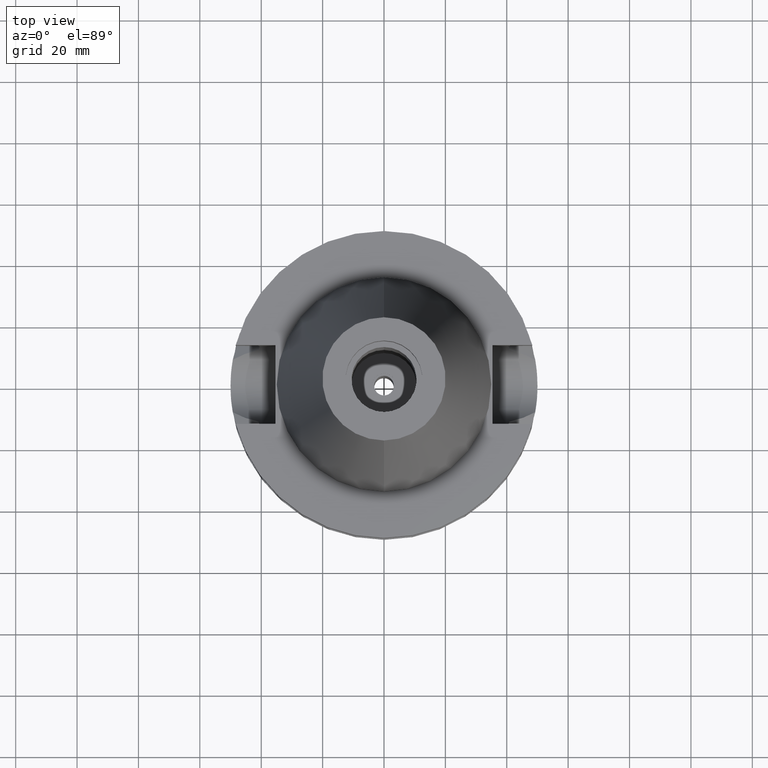
[diagram: clean part render]
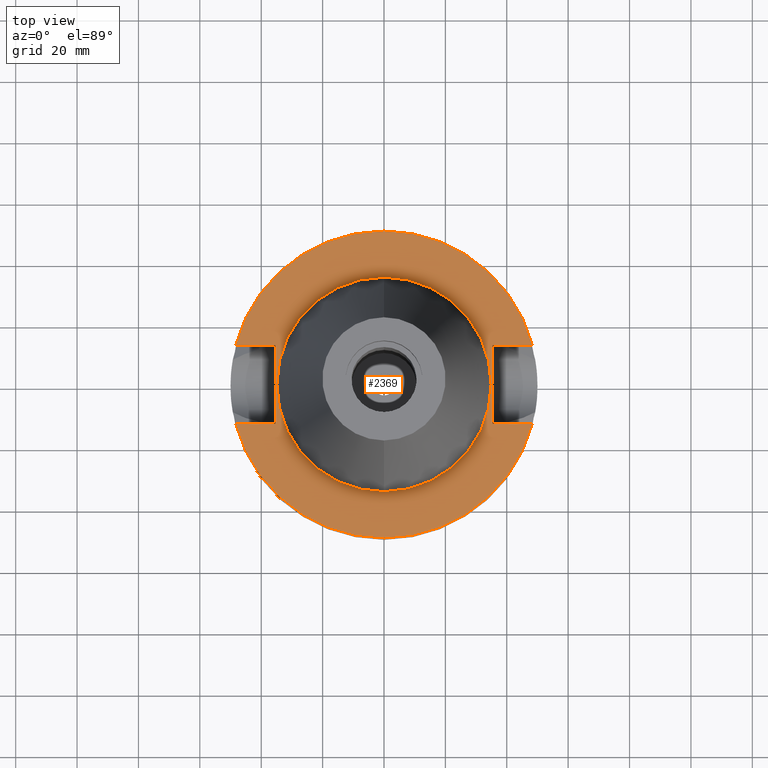
[diagram: same view with one face highlighted and labeled with its STEP entity id]
A machine part, top view. The second image highlights one B-rep face of the part: STEP entity #2369.
In plain terms, the highlighted planar face has unit normal (0, 0, -1).
Its self-contained STEP definition (entity closure, byte-faithful):
#40 = VERTEX_POINT ( 'NONE', #3235 ) ;
#49 = LINE ( 'NONE', #1803, #2599 ) ;
#65 = VERTEX_POINT ( 'NONE', #936 ) ;
#96 = VERTEX_POINT ( 'NONE', #139 ) ;
#98 = CIRCLE ( 'NONE', #1466, 50.00000000000000000 ) ;
#139 = CARTESIAN_POINT ( 'NONE',  ( 35.39999999999999858, 12.84999999999999964, -3.000000000000000000 ) ) ;
#266 = VERTEX_POINT ( 'NONE', #737 ) ;
#323 = VERTEX_POINT ( 'NONE', #802 ) ;
#362 = CARTESIAN_POINT ( 'NONE',  ( 0.0000000000000000000, 2.585719251719999535E-14, -3.000000000000000000 ) ) ;
#398 = DIRECTION ( 'NONE',  ( -1.000000000000000000, 0.0000000000000000000, 0.0000000000000000000 ) ) ;
#415 = DIRECTION ( 'NONE',  ( 0.0000000000000000000, 0.0000000000000000000, 1.000000000000000000 ) ) ;
#737 = CARTESIAN_POINT ( 'NONE',  ( -48.32057015392000210, -12.84999999999999964, -3.000000000000000000 ) ) ;
#739 = CARTESIAN_POINT ( 'NONE',  ( -35.39999999999999858, 12.84999999999999964, -3.000000000000000000 ) ) ;
#744 = LINE ( 'NONE', #1818, #2440 ) ;
#781 = EDGE_CURVE ( 'NONE', #323, #266, #744, .T. ) ;
#802 = CARTESIAN_POINT ( 'NONE',  ( -35.39999999999999858, -12.84999999999999964, -3.000000000000000000 ) ) ;
#812 = CARTESIAN_POINT ( 'NONE',  ( 48.32057015392000210, -12.84999999999999964, -3.000000000000000000 ) ) ;
#829 = CIRCLE ( 'NONE', #893, 34.92499999999999716 ) ;
#893 = AXIS2_PLACEMENT_3D ( 'NONE', #2720, #2112, #1838 ) ;
#936 = CARTESIAN_POINT ( 'NONE',  ( 35.39999999999999858, -12.84999999999999964, -3.000000000000000000 ) ) ;
#980 = VERTEX_POINT ( 'NONE', #2838 ) ;
#987 = ORIENTED_EDGE ( 'NONE', *, *, #3494, .F. ) ;
#989 = CARTESIAN_POINT ( 'NONE',  ( 0.0000000000000000000, 2.585719251719999535E-14, -3.000000000000000000 ) ) ;
#1042 = DIRECTION ( 'NONE',  ( -1.000000000000000000, 0.0000000000000000000, 0.0000000000000000000 ) ) ;
#1069 = VECTOR ( 'NONE', #3453, 1000.000000000000000 ) ;
#1077 = DIRECTION ( 'NONE',  ( 0.0000000000000000000, -1.000000000000000000, 0.0000000000000000000 ) ) ;
#1087 = EDGE_CURVE ( 'NONE', #65, #3446, #3157, .T. ) ;
#1104 = CIRCLE ( 'NONE', #3191, 50.00000000000000000 ) ;
#1131 = CARTESIAN_POINT ( 'NONE',  ( 0.0000000000000000000, 34.92499999999999716, -3.000000000000000000 ) ) ;
#1152 = EDGE_LOOP ( 'NONE', ( #3499, #2020 ) ) ;
#1161 = DIRECTION ( 'NONE',  ( 0.0000000000000000000, 0.0000000000000000000, -1.000000000000000000 ) ) ;
#1192 = VERTEX_POINT ( 'NONE', #1131 ) ;
#1221 = DIRECTION ( 'NONE',  ( 0.0000000000000000000, 1.000000000000000000, 0.0000000000000000000 ) ) ;
#1225 = EDGE_LOOP ( 'NONE', ( #1406, #1774, #1991, #3529, #1485, #987, #2372, #2929 ) ) ;
#1228 = EDGE_CURVE ( 'NONE', #96, #65, #1354, .T. ) ;
#1279 = VERTEX_POINT ( 'NONE', #1972 ) ;
#1336 = DIRECTION ( 'NONE',  ( 0.0000000000000000000, 0.0000000000000000000, -1.000000000000000000 ) ) ;
#1354 = LINE ( 'NONE', #1384, #2250 ) ;
#1384 = CARTESIAN_POINT ( 'NONE',  ( 35.39999999999999858, 12.84999999999999964, -3.000000000000000000 ) ) ;
#1406 = ORIENTED_EDGE ( 'NONE', *, *, #781, .T. ) ;
#1466 = AXIS2_PLACEMENT_3D ( 'NONE', #362, #1161, #1221 ) ;
#1485 = ORIENTED_EDGE ( 'NONE', *, *, #3136, .T. ) ;
#1525 = EDGE_CURVE ( 'NONE', #40, #1192, #829, .T. ) ;
#1544 = CARTESIAN_POINT ( 'NONE',  ( 0.0000000000000000000, 2.585719251719999535E-14, -3.000000000000000000 ) ) ;
#1613 = PLANE ( 'NONE',  #3258 ) ;
#1638 = FACE_OUTER_BOUND ( 'NONE', #1225, .T. ) ;
#1711 = CARTESIAN_POINT ( 'NONE',  ( 35.39999999999999858, -12.84999999999999964, -3.000000000000000000 ) ) ;
#1774 = ORIENTED_EDGE ( 'NONE', *, *, #3280, .F. ) ;
#1803 = CARTESIAN_POINT ( 'NONE',  ( 35.39999999999999858, 12.84999999999999964, -3.000000000000000000 ) ) ;
#1818 = CARTESIAN_POINT ( 'NONE',  ( -35.39999999999999858, -12.84999999999999964, -3.000000000000000000 ) ) ;
#1838 = DIRECTION ( 'NONE',  ( 0.0000000000000000000, -1.000000000000000000, 0.0000000000000000000 ) ) ;
#1845 = DIRECTION ( 'NONE',  ( 0.0000000000000000000, 0.0000000000000000000, -1.000000000000000000 ) ) ;
#1930 = CIRCLE ( 'NONE', #2827, 34.92499999999999716 ) ;
#1953 = FACE_BOUND ( 'NONE', #1152, .T. ) ;
#1972 = CARTESIAN_POINT ( 'NONE',  ( -35.39999999999999858, 12.84999999999999964, -3.000000000000000000 ) ) ;
#1991 = ORIENTED_EDGE ( 'NONE', *, *, #1087, .F. ) ;
#2020 = ORIENTED_EDGE ( 'NONE', *, *, #1525, .F. ) ;
#2112 = DIRECTION ( 'NONE',  ( 0.0000000000000000000, 0.0000000000000000000, 1.000000000000000000 ) ) ;
#2227 = VECTOR ( 'NONE', #398, 1000.000000000000000 ) ;
#2250 = VECTOR ( 'NONE', #1077, 1000.000000000000000 ) ;
#2288 = VECTOR ( 'NONE', #2715, 1000.000000000000000 ) ;
#2369 = ADVANCED_FACE ( 'NONE', ( #1638, #1953 ), #1613, .F. ) ;
#2372 = ORIENTED_EDGE ( 'NONE', *, *, #2577, .F. ) ;
#2440 = VECTOR ( 'NONE', #1042, 1000.000000000000000 ) ;
#2478 = DIRECTION ( 'NONE',  ( 0.0000000000000000000, -1.000000000000000000, 0.0000000000000000000 ) ) ;
#2558 = EDGE_CURVE ( 'NONE', #323, #1279, #3575, .T. ) ;
#2577 = EDGE_CURVE ( 'NONE', #1279, #980, #2982, .T. ) ;
#2599 = VECTOR ( 'NONE', #3184, 1000.000000000000000 ) ;
#2677 = VERTEX_POINT ( 'NONE', #3513 ) ;
#2694 = EDGE_CURVE ( 'NONE', #1192, #40, #1930, .T. ) ;
#2715 = DIRECTION ( 'NONE',  ( 0.0000000000000000000, 1.000000000000000000, 0.0000000000000000000 ) ) ;
#2720 = CARTESIAN_POINT ( 'NONE',  ( 0.0000000000000000000, 2.585719251719999535E-14, -3.000000000000000000 ) ) ;
#2727 = DIRECTION ( 'NONE',  ( 0.0000000000000000000, 1.000000000000000000, 0.0000000000000000000 ) ) ;
#2769 = CARTESIAN_POINT ( 'NONE',  ( 0.0000000000000000000, 1.187907395172999884E-14, -3.000000000000000000 ) ) ;
#2827 = AXIS2_PLACEMENT_3D ( 'NONE', #989, #415, #2727 ) ;
#2838 = CARTESIAN_POINT ( 'NONE',  ( -48.32057015392000210, 12.84999999999999964, -3.000000000000000000 ) ) ;
#2929 = ORIENTED_EDGE ( 'NONE', *, *, #2558, .F. ) ;
#2982 = LINE ( 'NONE', #739, #2227 ) ;
#3104 = DIRECTION ( 'NONE',  ( 0.0000000000000000000, -1.000000000000000000, 0.0000000000000000000 ) ) ;
#3136 = EDGE_CURVE ( 'NONE', #96, #2677, #49, .T. ) ;
#3157 = LINE ( 'NONE', #1711, #1069 ) ;
#3184 = DIRECTION ( 'NONE',  ( 1.000000000000000000, 0.0000000000000000000, 0.0000000000000000000 ) ) ;
#3191 = AXIS2_PLACEMENT_3D ( 'NONE', #1544, #1845, #2478 ) ;
#3235 = CARTESIAN_POINT ( 'NONE',  ( 0.0000000000000000000, -34.92499999999999716, -3.000000000000000000 ) ) ;
#3258 = AXIS2_PLACEMENT_3D ( 'NONE', #2769, #1336, #3104 ) ;
#3279 = CARTESIAN_POINT ( 'NONE',  ( -35.39999999999999858, -12.84999999999999964, -3.000000000000000000 ) ) ;
#3280 = EDGE_CURVE ( 'NONE', #3446, #266, #1104, .T. ) ;
#3446 = VERTEX_POINT ( 'NONE', #812 ) ;
#3453 = DIRECTION ( 'NONE',  ( 1.000000000000000000, 0.0000000000000000000, 0.0000000000000000000 ) ) ;
#3494 = EDGE_CURVE ( 'NONE', #980, #2677, #98, .T. ) ;
#3499 = ORIENTED_EDGE ( 'NONE', *, *, #2694, .F. ) ;
#3513 = CARTESIAN_POINT ( 'NONE',  ( 48.32057015392000210, 12.84999999999999964, -3.000000000000000000 ) ) ;
#3529 = ORIENTED_EDGE ( 'NONE', *, *, #1228, .F. ) ;
#3575 = LINE ( 'NONE', #3279, #2288 ) ;